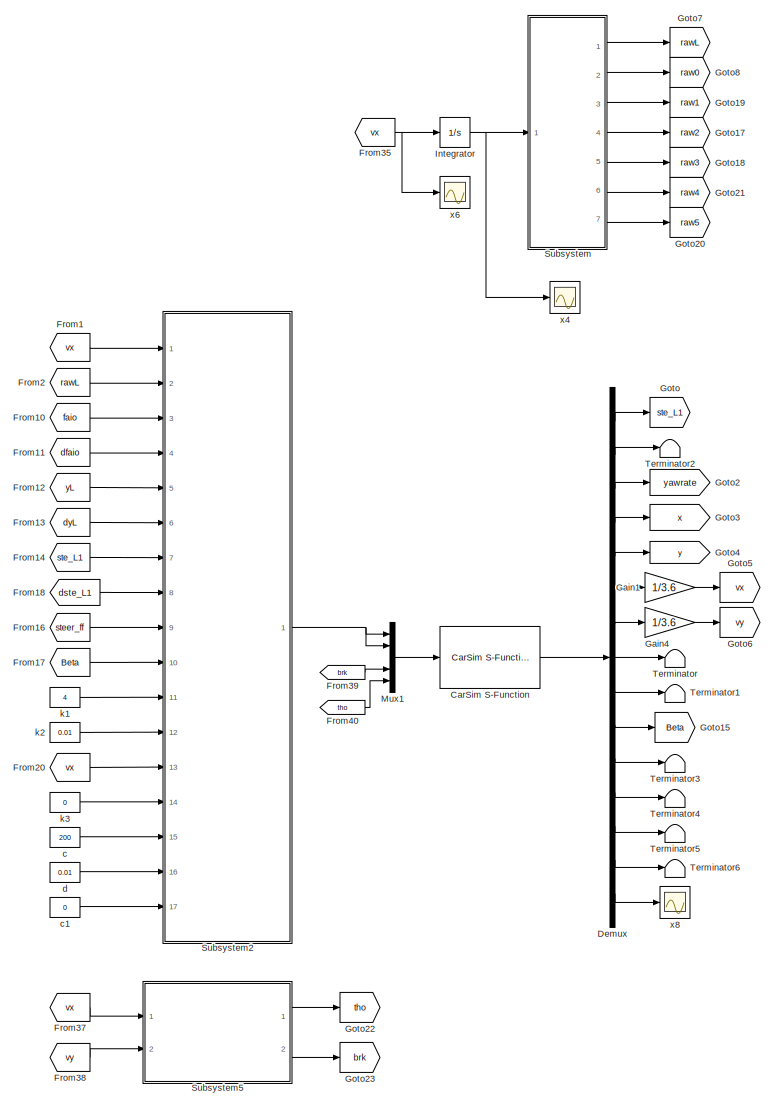
[diagram: root canvas - part 1/2, right side, full height]
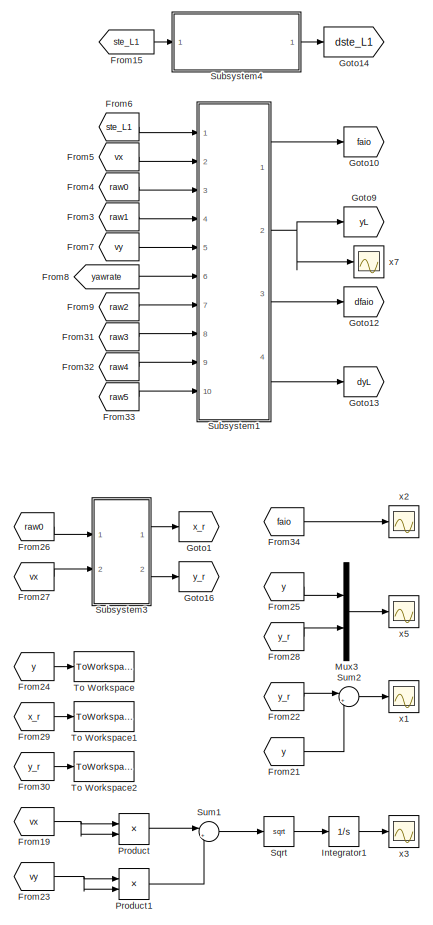
[diagram: root canvas - part 2/2, left side, full height]
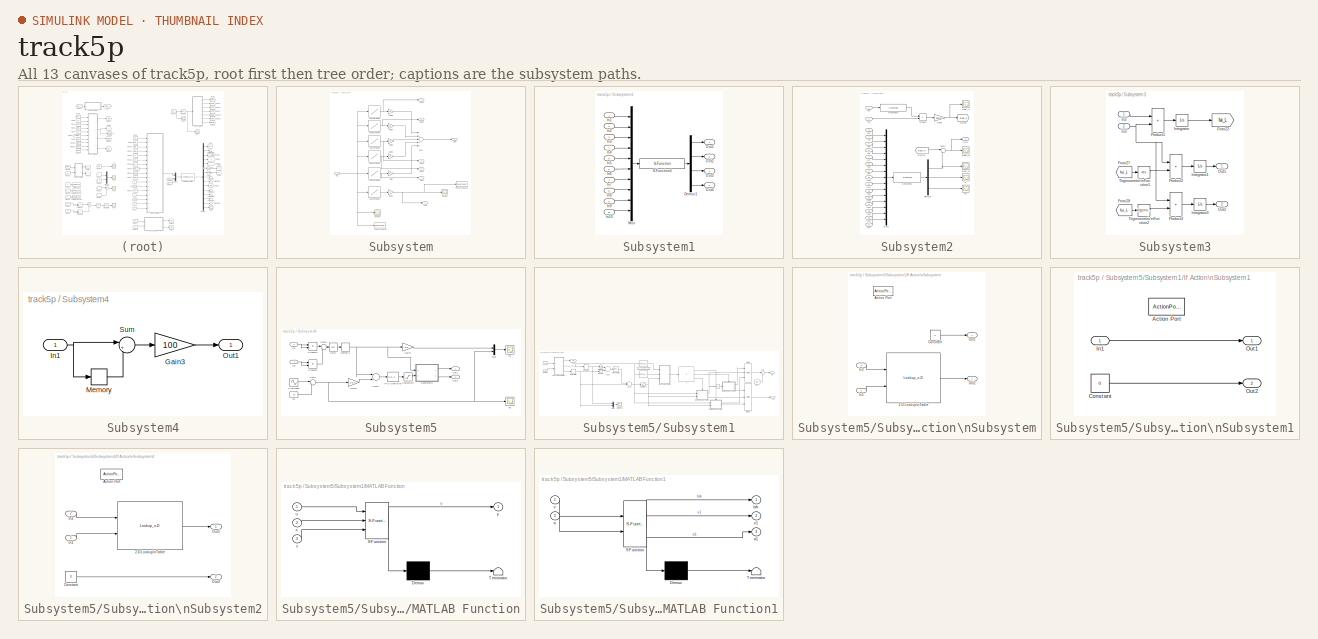
[diagram: thumbnail index - all 13 canvases of the model, root first then tree order]
MODEL track5p
KIND model
BLOCK [Reference] CarSim S-Function  REF=Solver_SF/CarSim S-Function
  AttributesFormatString = Vehicle Code: %<VehicleCode>
  Ports = [1, 1]
  Priority = 1
  SID = 406
  SIMFILE = <userpath><path>
  SourceBlock = Solver_SF/CarSim S-Function
  SourceType = Vehicle math model library
  VehicleCode = i_i
BLOCK [Demux] Demux
  DisplayOption = bar
  Outputs = 15
  Ports = [1, 15]
  SID = 6
BLOCK [From] From1
  GotoTag = vx
  SID = 40
BLOCK [From] From10
  GotoTag = faio
  SID = 64
BLOCK [From] From11
  GotoTag = dfaio
  SID = 65
BLOCK [From] From12
  GotoTag = yL
  SID = 66
BLOCK [From] From13
  GotoTag = dyL
  SID = 67
BLOCK [From] From14
  GotoTag = ste_L1
  SID = 68
BLOCK [From] From15
  GotoTag = ste_L1
  SID = 85
BLOCK [From] From16
  GotoTag = steer_ff
  SID = 70
BLOCK [From] From17
  GotoTag = Beta
  SID = 91
BLOCK [From] From18
  GotoTag = dste_L1
  SID = 89
BLOCK [From] From19
  GotoTag = vx
  SID = 304
BLOCK [From] From2
  GotoTag = rawL
  SID = 42
BLOCK [From] From20
  GotoTag = vx
  SID = 74
BLOCK [From] From21
  GotoTag = y
  SID = 149
BLOCK [From] From22
  GotoTag = y_r
  SID = 150
BLOCK [From] From23
  GotoTag = vy
  SID = 305
BLOCK [From] From24
  GotoTag = y
  SID = 161
BLOCK [From] From25
  GotoTag = y
  SID = 123
BLOCK [From] From26
  GotoTag = raw0
  SID = 143
BLOCK [From] From27
  GotoTag = vx
  SID = 144
BLOCK [From] From28
  GotoTag = y_r
  SID = 147
BLOCK [From] From29
  GotoTag = x_r
  SID = 162
BLOCK [From] From3
  GotoTag = raw1
  SID = 49
BLOCK [From] From30
  GotoTag = y_r
  SID = 164
BLOCK [From] From31
  GotoTag = raw3
  SID = 194
BLOCK [From] From32
  GotoTag = raw4
  SID = 195
BLOCK [From] From33
  GotoTag = raw5
  SID = 196
BLOCK [From] From34
  GotoTag = faio
  SID = 197
BLOCK [From] From35
  GotoTag = vx
  SID = 402
BLOCK [From] From37
  GotoTag = vx
  SID = 320
BLOCK [From] From38
  GotoTag = vy
  SID = 321
BLOCK [From] From39
  GotoTag = brk
  SID = 396
BLOCK [From] From4
  GotoTag = raw0
  SID = 50
BLOCK [From] From40
  GotoTag = tho
  SID = 397
BLOCK [From] From5
  GotoTag = vx
  SID = 51
BLOCK [From] From6
  GotoTag = ste_L1
  SID = 52
BLOCK [From] From7
  GotoTag = vy
  SID = 53
BLOCK [From] From8
  GotoTag = yawrate
  SID = 54
BLOCK [From] From9
  GotoTag = raw2
  SID = 193
BLOCK [Gain] Gain1
  Gain = 1/3.6
  OutDataTypeStr = Inherit: Inherit via internal rule
  ParamDataTypeStr = Inherit: Inherit via internal rule
  SID = 117
  SaturateOnIntegerOverflow = off
BLOCK [Gain] Gain4
  Gain = 1/3.6
  OutDataTypeStr = Inherit: Inherit via internal rule
  ParamDataTypeStr = Inherit: Inherit via internal rule
  SID = 118
  SaturateOnIntegerOverflow = off
BLOCK [Goto] Goto
  GotoTag = ste_L1
  SID = 21
BLOCK [Goto] Goto1
  GotoTag = x_r
  SID = 145
BLOCK [Goto] Goto10
  GotoTag = faio
  SID = 59
BLOCK [Goto] Goto12
  GotoTag = dfaio
  SID = 61
BLOCK [Goto] Goto13
  GotoTag = dyL
  SID = 62
BLOCK [Goto] Goto14
  GotoTag = dste_L1
  SID = 88
BLOCK [Goto] Goto15
  GotoTag = Beta
  SID = 90
BLOCK [Goto] Goto16
  GotoTag = y_r
  SID = 146
BLOCK [Goto] Goto17
  GotoTag = raw2
  SID = 183
BLOCK [Goto] Goto18
  GotoTag = raw3
  SID = 184
BLOCK [Goto] Goto19
  GotoTag = raw1
  SID = 185
BLOCK [Goto] Goto2
  GotoTag = yawrate
  SID = 24
BLOCK [Goto] Goto20
  GotoTag = raw5
  SID = 186
BLOCK [Goto] Goto21
  GotoTag = raw4
  SID = 187
BLOCK [Goto] Goto22
  GotoTag = tho
  SID = 322
BLOCK [Goto] Goto23
  GotoTag = brk
  SID = 323
BLOCK [Goto] Goto3
  GotoTag = x
  SID = 26
BLOCK [Goto] Goto4
  GotoTag = y
  SID = 27
BLOCK [Goto] Goto5
  GotoTag = vx
  SID = 28
BLOCK [Goto] Goto6
  GotoTag = vy
  SID = 29
BLOCK [Goto] Goto7
  GotoTag = rawL
  SID = 38
BLOCK [Goto] Goto8
  GotoTag = raw0
  SID = 39
BLOCK [Goto] Goto9
  GotoTag = yL
  SID = 398
BLOCK [Integrator] Integrator
  Ports = [1, 1]
  SID = 400
BLOCK [Integrator] Integrator1
  Ports = [1, 1]
  SID = 310
BLOCK [Mux] Mux1
  DisplayOption = bar
  Inputs = 5
  Ports = [5, 1]
  SID = 46
BLOCK [Mux] Mux3
  DisplayOption = bar
  Inputs = 2
  Ports = [2, 1]
  SID = 151
BLOCK [Product] Product
  InputSameDT = off
  OutDataTypeStr = Inherit: Inherit via internal rule
  Ports = [2, 1]
  RndMeth = Floor
  SID = 306
  SaturateOnIntegerOverflow = off
BLOCK [Product] Product1
  InputSameDT = off
  OutDataTypeStr = Inherit: Inherit via internal rule
  Ports = [2, 1]
  RndMeth = Floor
  SID = 307
  SaturateOnIntegerOverflow = off
BLOCK [Sqrt] Sqrt
  SID = 309
BLOCK [SubSystem] Subsystem
  Ports = [1, 7]
  RequestExecContextInheritance = off
  SID = 7
  Variant = off
BLOCK [Gain] Subsystem/Gain
  Gain = 0.1
  OutDataTypeStr = Inherit: Inherit via internal rule
  ParamDataTypeStr = Inherit: Inherit via internal rule
  SID = 9
  SaturateOnIntegerOverflow = off
BLOCK [Gain] Subsystem/Gain1
  OutDataTypeStr = Inherit: Inherit via internal rule
  ParamDataTypeStr = Inherit: Inherit via internal rule
  SID = 10
  SaturateOnIntegerOverflow = off
BLOCK [Gain] Subsystem/Gain2
  Gain = 0.1
  OutDataTypeStr = Inherit: Inherit via internal rule
  ParamDataTypeStr = Inherit: Inherit via internal rule
  SID = 172
  SaturateOnIntegerOverflow = off
BLOCK [Gain] Subsystem/Gain3
  Gain = 0.3
  OutDataTypeStr = Inherit: Inherit via internal rule
  ParamDataTypeStr = Inherit: Inherit via internal rule
  SID = 173
  SaturateOnIntegerOverflow = off
BLOCK [Gain] Subsystem/Gain4
  Gain = 0.3
  OutDataTypeStr = Inherit: Inherit via internal rule
  ParamDataTypeStr = Inherit: Inherit via internal rule
  SID = 174
  SaturateOnIntegerOverflow = off
BLOCK [Gain] Subsystem/Gain5
  Gain = 0.2
  OutDataTypeStr = Inherit: Inherit via internal rule
  ParamDataTypeStr = Inherit: Inherit via internal rule
  SID = 175
  SaturateOnIntegerOverflow = off
BLOCK [Inport] Subsystem/In1
  IconDisplay = Port number
  SID = 8
BLOCK [Lookup] Subsystem/Lookup Table1
  InputValues = load('change_lane_s.txt')
  SID = 13
  SaturateOnIntegerOverflow = off
  Table = load('change_lane_p.txt')
BLOCK [Lookup] Subsystem/Lookup Table2
  InputValues = load('change_lane_s.txt')
  SID = 275
  SaturateOnIntegerOverflow = off
  Table = load('change_lane_p05.txt')
BLOCK [Lookup] Subsystem/Lookup Table3
  InputValues = load('change_lane_s.txt')
  SID = 276
  SaturateOnIntegerOverflow = off
  Table = load('change_lane_p04.txt')
BLOCK [Lookup] Subsystem/Lookup Table4
  InputValues = load('change_lane_s.txt')
  SID = 277
  SaturateOnIntegerOverflow = off
  Table = load('change_lane_p03.txt')
BLOCK [Lookup] Subsystem/Lookup Table5
  InputValues = load('change_lane_s.txt')
  SID = 278
  SaturateOnIntegerOverflow = off
  Table = load('change_lane_p02.txt')
BLOCK [Lookup] Subsystem/Lookup Table6
  InputValues = load('change_lane_s.txt')
  SID = 279
  SaturateOnIntegerOverflow = off
  Table = load('change_lane_p01.txt')
BLOCK [Scope] Subsystem/Scope
  NumInputPorts = 1
  Ports = [1]
  SID = 280
  ScopeSpecificationString = Simulink.scopes.TimeScopeBlockCfg('CurrentConfiguration', extmgr.ConfigurationSet(extmgr.Configuration('Core','General UI',true),extmgr.Configuration('Core','Source UI',true),extmgr.Configuration('Sources','WiredSimulink',true,'DataLoggingVariableName','ScopeData1'),extmgr.Configuration('Visuals','Time Domain',true,'SerializedDisplays',{struct('MinYLimReal','-0.01187','MaxYLimReal','0.01187','YLab...<+1364ch>
BLOCK [Scope] Subsystem/Scope1
  NumInputPorts = 1
  Ports = [1]
  SID = 281
  ScopeSpecificationString = Simulink.scopes.TimeScopeBlockCfg('CurrentConfiguration', extmgr.ConfigurationSet(extmgr.Configuration('Core','General UI',true),extmgr.Configuration('Core','Source UI',true),extmgr.Configuration('Sources','WiredSimulink',true,'DataLoggingVariableName','ScopeData2'),extmgr.Configuration('Visuals','Time Domain',true,'SerializedDisplays',{struct('MinYLimReal','-16.34884','MaxYLimReal','147.13958','Y...<+1404ch>
BLOCK [Sum] Subsystem/Sum
  InputSameDT = off
  Inputs = |+++++
  OutDataTypeStr = Inherit: Inherit via internal rule
  Ports = [5, 1]
  SID = 176
  SaturateOnIntegerOverflow = off
BLOCK [ToWorkspace] Subsystem/To Workspace1
  FixptAsFi = on
  MaxDataPoints = inf
  Ports = [1]
  SID = 287
  SampleTime = -1
  Save2DSignal = 3-D array (concatenate along third dimension)
  SaveFormat = Timeseries
  VariableName = k
BLOCK [ToWorkspace] Subsystem/To Workspace2
  FixptAsFi = on
  MaxDataPoints = inf
  Ports = [1]
  SID = 289
  SampleTime = -1
  Save2DSignal = 3-D array (concatenate along third dimension)
  SaveFormat = Timeseries
  VariableName = L
BLOCK [Outport] Subsystem/raw0
  IconDisplay = Port number
  Port = 2
  SID = 20
BLOCK [Outport] Subsystem/rawL
  IconDisplay = Port number
  SID = 19
BLOCK [Outport] Subsystem/rawL1
  IconDisplay = Port number
  Port = 3
  SID = 188
BLOCK [Outport] Subsystem/rawL2
  IconDisplay = Port number
  Port = 4
  SID = 189
BLOCK [Outport] Subsystem/rawL3
  IconDisplay = Port number
  Port = 5
  SID = 190
BLOCK [Outport] Subsystem/rawL4
  IconDisplay = Port number
  Port = 6
  SID = 191
BLOCK [Outport] Subsystem/rawL5
  IconDisplay = Port number
  Port = 7
  SID = 192
BLOCK [SubSystem] Subsystem1
  Ports = [10, 4]
  RequestExecContextInheritance = off
  SID = 238
  Variant = off
BLOCK [Demux] Subsystem1/Demux1
  DisplayOption = bar
  Ports = [1, 4]
  SID = 58
BLOCK [Inport] Subsystem1/In1
  IconDisplay = Port number
  SID = 239
BLOCK [Inport] Subsystem1/In10
  IconDisplay = Port number
  Port = 10
  SID = 248
BLOCK [Inport] Subsystem1/In2
  IconDisplay = Port number
  Port = 2
  SID = 240
BLOCK [Inport] Subsystem1/In3
  IconDisplay = Port number
  Port = 3
  SID = 241
BLOCK [Inport] Subsystem1/In4
  IconDisplay = Port number
  Port = 4
  SID = 242
BLOCK [Inport] Subsystem1/In5
  IconDisplay = Port number
  Port = 5
  SID = 243
BLOCK [Inport] Subsystem1/In6
  IconDisplay = Port number
  Port = 6
  SID = 244
BLOCK [Inport] Subsystem1/In7
  IconDisplay = Port number
  Port = 7
  SID = 245
BLOCK [Inport] Subsystem1/In8
  IconDisplay = Port number
  Port = 8
  SID = 246
BLOCK [Inport] Subsystem1/In9
  IconDisplay = Port number
  Port = 9
  SID = 247
BLOCK [Mux] Subsystem1/Mux
  DisplayOption = bar
  Inputs = 10
  Ports = [10, 1]
  SID = 45
BLOCK [Outport] Subsystem1/Out1
  IconDisplay = Port number
  SID = 249
BLOCK [Outport] Subsystem1/Out2
  IconDisplay = Port number
  Port = 2
  SID = 250
BLOCK [Outport] Subsystem1/Out3
  IconDisplay = Port number
  Port = 3
  SID = 251
BLOCK [Outport] Subsystem1/Out4
  IconDisplay = Port number
  Port = 4
  SID = 252
BLOCK [S-Function] Subsystem1/S-Function4
  EnableBusSupport = off
  FunctionName = vehicle_model_multipoint
  Ports = [1, 1]
  SFcnIsStateOwnerBlock = off
  SFunctionDeploymentMode = off
  SID = 177
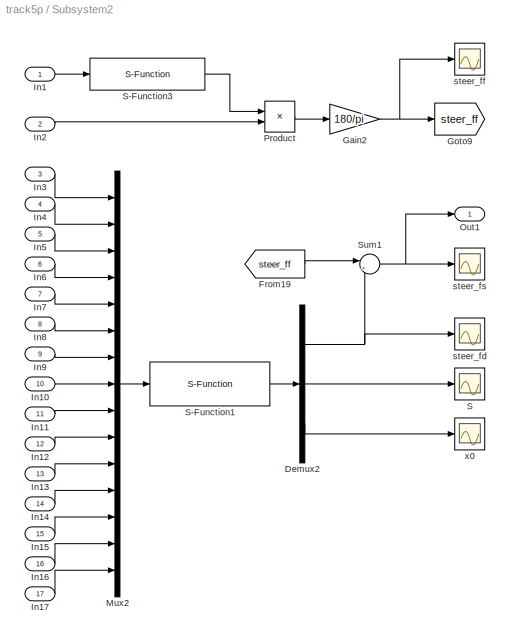
BLOCK [SubSystem] Subsystem2
  Ports = [17, 1]
  RequestExecContextInheritance = off
  SID = 253
  Variant = off
BLOCK [Demux] Subsystem2/Demux2
  DisplayOption = bar
  Outputs = 3
  Ports = [1, 3]
  SID = 94
BLOCK [From] Subsystem2/From19
  GotoTag = steer_ff
  SID = 95
BLOCK [Gain] Subsystem2/Gain2
  Gain = 180/pi
  OutDataTypeStr = Inherit: Inherit via internal rule
  ParamDataTypeStr = Inherit: Inherit via internal rule
  SID = 93
  SaturateOnIntegerOverflow = off
BLOCK [Goto] Subsystem2/Goto9
  GotoTag = steer_ff
  SID = 43
BLOCK [Inport] Subsystem2/In1
  IconDisplay = Port number
  SID = 254
BLOCK [Inport] Subsystem2/In10
  IconDisplay = Port number
  Port = 10
  SID = 263
BLOCK [Inport] Subsystem2/In11
  IconDisplay = Port number
  Port = 11
  SID = 264
BLOCK [Inport] Subsystem2/In12
  IconDisplay = Port number
  Port = 12
  SID = 265
BLOCK [Inport] Subsystem2/In13
  IconDisplay = Port number
  Port = 13
  SID = 266
BLOCK [Inport] Subsystem2/In14
  IconDisplay = Port number
  Port = 14
  SID = 267
BLOCK [Inport] Subsystem2/In15
  IconDisplay = Port number
  Port = 15
  SID = 268
BLOCK [Inport] Subsystem2/In16
  IconDisplay = Port number
  Port = 16
  SID = 269
BLOCK [Inport] Subsystem2/In17
  IconDisplay = Port number
  Port = 17
  SID = 270
BLOCK [Inport] Subsystem2/In2
  IconDisplay = Port number
  Port = 2
  SID = 255
BLOCK [Inport] Subsystem2/In3
  IconDisplay = Port number
  Port = 3
  SID = 256
BLOCK [Inport] Subsystem2/In4
  IconDisplay = Port number
  Port = 4
  SID = 257
BLOCK [Inport] Subsystem2/In5
  IconDisplay = Port number
  Port = 5
  SID = 258
BLOCK [Inport] Subsystem2/In6
  IconDisplay = Port number
  Port = 6
  SID = 259
BLOCK [Inport] Subsystem2/In7
  IconDisplay = Port number
  Port = 7
  SID = 260
BLOCK [Inport] Subsystem2/In8
  IconDisplay = Port number
  Port = 8
  SID = 261
BLOCK [Inport] Subsystem2/In9
  IconDisplay = Port number
  Port = 9
  SID = 262
BLOCK [Mux] Subsystem2/Mux2
  DisplayOption = bar
  Inputs = 15
  Ports = [15, 1]
  SID = 63
BLOCK [Outport] Subsystem2/Out1
  IconDisplay = Port number
  SID = 271
BLOCK [Product] Subsystem2/Product
  InputSameDT = off
  OutDataTypeStr = Inherit: Inherit via internal rule
  Ports = [2, 1]
  RndMeth = Floor
  SID = 41
  SaturateOnIntegerOverflow = off
BLOCK [Scope] Subsystem2/S
  NumInputPorts = 1
  Ports = [1]
  SID = 99
  ScopeSpecificationString = Simulink.scopes.TimeScopeBlockCfg('CurrentConfiguration', extmgr.ConfigurationSet(extmgr.Configuration('Core','General UI',true),extmgr.Configuration('Core','Source UI',true),extmgr.Configuration('Sources','WiredSimulink',true,'DataLoggingVariableName','ScopeData1'),extmgr.Configuration('Visuals','Time Domain',true,'SerializedDisplays',{struct('MinYLimReal','-18.34695','MaxYLimReal','17.61791','YL...<+1373ch>
BLOCK [S-Function] Subsystem2/S-Function1
  EnableBusSupport = off
  FunctionName = steer_slid_mode_c
  Ports = [1, 1]
  SFcnIsStateOwnerBlock = off
  SFunctionDeploymentMode = off
  SID = 48
BLOCK [S-Function] Subsystem2/S-Function3
  EnableBusSupport = off
  FunctionName = ff_control
  Ports = [1, 1]
  SFcnIsStateOwnerBlock = off
  SFunctionDeploymentMode = off
  SID = 47
BLOCK [Sum] Subsystem2/Sum1
  IconShape = round
  InputSameDT = off
  Inputs = |++
  OutDataTypeStr = Inherit: Inherit via internal rule
  Ports = [2, 1]
  SID = 96
  SaturateOnIntegerOverflow = off
BLOCK [Scope] Subsystem2/steer_fd
  NumInputPorts = 1
  Ports = [1]
  SID = 101
  ScopeSpecificationString = Simulink.scopes.TimeScopeBlockCfg('CurrentConfiguration', extmgr.ConfigurationSet(extmgr.Configuration('Core','General UI',true),extmgr.Configuration('Core','Source UI',true),extmgr.Configuration('Sources','WiredSimulink',true,'DataLoggingVariableName','ScopeData3'),extmgr.Configuration('Visuals','Time Domain',true,'SerializedDisplays',{struct('MinYLimReal','-1.24816','MaxYLimReal','1.50015','YLab...<+1367ch>
BLOCK [Scope] Subsystem2/steer_ff
  NumInputPorts = 1
  Ports = [1]
  SID = 114
  ScopeSpecificationString = Simulink.scopes.TimeScopeBlockCfg('CurrentConfiguration', extmgr.ConfigurationSet(extmgr.Configuration('Core','General UI',true),extmgr.Configuration('Core','Source UI',true),extmgr.Configuration('Sources','WiredSimulink',true,'DataLoggingVariableName','ScopeData7'),extmgr.Configuration('Visuals','Time Domain',true,'SerializedDisplays',{struct('MinYLimReal','-1.83761','MaxYLimReal','1.83227','YLab...<+1397ch>
BLOCK [Scope] Subsystem2/steer_fs
  NumInputPorts = 1
  Ports = [1]
  SID = 102
  ScopeSpecificationString = Simulink.scopes.TimeScopeBlockCfg('CurrentConfiguration', extmgr.ConfigurationSet(extmgr.Configuration('Core','General UI',true),extmgr.Configuration('Core','Source UI',true),extmgr.Configuration('Sources','WiredSimulink',true,'DataLoggingVariableName','ScopeData4'),extmgr.Configuration('Visuals','Time Domain',true,'SerializedDisplays',{struct('MinYLimReal','-1.60814','MaxYLimReal','1.65796','YLab...<+1396ch>
BLOCK [Scope] Subsystem2/x0
  NumInputPorts = 1
  Ports = [1]
  SID = 100
  ScopeSpecificationString = Simulink.scopes.TimeScopeBlockCfg('CurrentConfiguration', extmgr.ConfigurationSet(extmgr.Configuration('Core','General UI',true),extmgr.Configuration('Core','Source UI',true),extmgr.Configuration('Sources','WiredSimulink',true,'DataLoggingVariableName','ScopeData2'),extmgr.Configuration('Visuals','Time Domain',true,'SerializedDisplays',{struct('MinYLimReal','-1.00000','MaxYLimReal','1.00000','YLab...<+1367ch>
BLOCK [SubSystem] Subsystem3
  Ports = [2, 2]
  RequestExecContextInheritance = off
  SID = 125
  Variant = off
BLOCK [From] Subsystem3/From27
  GotoTag = fai_L
  SID = 130
BLOCK [From] Subsystem3/From28
  GotoTag = fai_L
  SID = 131
BLOCK [Goto] Subsystem3/Goto22
  GotoTag = fai_L
  SID = 132
BLOCK [Inport] Subsystem3/In2
  IconDisplay = Port number
  SID = 127
BLOCK [Inport] Subsystem3/In3
  IconDisplay = Port number
  Port = 2
  SID = 128
BLOCK [Integrator] Subsystem3/Integrator
  Ports = [1, 1]
  SID = 133
BLOCK [Integrator] Subsystem3/Integrator1
  Ports = [1, 1]
  SID = 134
BLOCK [Integrator] Subsystem3/Integrator3
  Ports = [1, 1]
  SID = 135
BLOCK [Outport] Subsystem3/Out1
  IconDisplay = Port number
  SID = 141
BLOCK [Outport] Subsystem3/Out2
  IconDisplay = Port number
  Port = 2
  SID = 142
BLOCK [Product] Subsystem3/Product1
  InputSameDT = off
  OutDataTypeStr = Inherit: Inherit via internal rule
  Ports = [2, 1]
  SID = 136
  SaturateOnIntegerOverflow = off
BLOCK [Product] Subsystem3/Product2
  InputSameDT = off
  OutDataTypeStr = Inherit: Inherit via internal rule
  Ports = [2, 1]
  SID = 137
  SaturateOnIntegerOverflow = off
BLOCK [Product] Subsystem3/Product3
  InputSameDT = off
  OutDataTypeStr = Inherit: Inherit via internal rule
  Ports = [2, 1]
  SID = 138
  SaturateOnIntegerOverflow = off
BLOCK [Trigonometry] Subsystem3/Trigonometric\nFunction1
  Operator = cos
  Ports = [1, 1]
  SID = 139
BLOCK [Trigonometry] Subsystem3/Trigonometric\nFunction2
  Ports = [1, 1]
  SID = 140
BLOCK [SubSystem] Subsystem4
  Ports = [1, 1]
  RequestExecContextInheritance = off
  SID = 272
  Variant = off
BLOCK [Gain] Subsystem4/Gain3
  Gain = 100
  OutDataTypeStr = Inherit: Inherit via internal rule
  ParamDataTypeStr = Inherit: Inherit via internal rule
  SID = 115
  SaturateOnIntegerOverflow = off
BLOCK [Inport] Subsystem4/In1
  IconDisplay = Port number
  SID = 273
BLOCK [Memory] Subsystem4/Memory
  SID = 86
BLOCK [Outport] Subsystem4/Out1
  IconDisplay = Port number
  SID = 274
BLOCK [Sum] Subsystem4/Sum
  IconShape = round
  InputSameDT = off
  Inputs = |+-
  OutDataTypeStr = Inherit: Inherit via internal rule
  Ports = [2, 1]
  SID = 87
  SaturateOnIntegerOverflow = off
BLOCK [SubSystem] Subsystem5
  Ports = [2, 2]
  RequestExecContextInheritance = off
  SID = 324
  Variant = off
BLOCK [Gain] Subsystem5/Gain1
  Gain = 3.6
  OutDataTypeStr = Inherit: Inherit via internal rule
  ParamDataTypeStr = Inherit: Inherit via internal rule
  SID = 327
  SaturateOnIntegerOverflow = off
BLOCK [Gain] Subsystem5/Gain2
  Gain = 1/3.6
  OutDataTypeStr = Inherit: Inherit via internal rule
  ParamDataTypeStr = Inherit: Inherit via internal rule
  SID = 328
  SaturateOnIntegerOverflow = off
BLOCK [Inport] Subsystem5/In1
  IconDisplay = Port number
  SID = 325
BLOCK [Inport] Subsystem5/In2
  IconDisplay = Port number
  Port = 2
  SID = 326
BLOCK [Memory] Subsystem5/Memory1
  SID = 329
BLOCK [Mux] Subsystem5/Mux
  DisplayOption = bar
  Inputs = 2
  Ports = [2, 1]
  SID = 330
BLOCK [Outport] Subsystem5/Out1
  IconDisplay = Port number
  SID = 391
BLOCK [Outport] Subsystem5/Out2
  IconDisplay = Port number
  Port = 2
  SID = 392
BLOCK [Reference] Subsystem5/PID Controller  REF=simulink/Continuous/PID Controller
  AntiWindupMode = none
  Controller = PID
  ControllerParametersSource = internal
  D = 0.05
  DGainOutDataTypeStr = Inherit: Inherit via internal rule
  DOutDataTypeStr = Inherit: Inherit via internal rule
  DOutMax = []
  DOutMin = []
  DParamDataTypeStr = Inherit: Inherit via internal rule
  DParamMax = []
  DParamMin = []
  DProdOutDataTypeStr = Inherit: Inherit via internal rule
  DifferentiatorICPrevScaledInput = 0
  DifferentiatorOutDataTypeStr = Inherit: Inherit via internal rule
  DifferentiatorOutMax = []
  DifferentiatorOutMin = []
  DivideOutDataTypeStr = Inherit: Inherit via internal rule
  DivideOutMax = []
  DivideOutMin = []
  ExternalReset = none
  FilterContinuousStateAttributes = ''
  FilterDiffDenAccumDataTypeStr = Inherit: Inherit via internal rule
  FilterDiffDenProductOutputDataTypeStr = Inherit: Inherit via internal rule
  FilterDiffNumAccumDataTypeStr = Inherit: Inherit via internal rule
  FilterDiffNumProductOutputDataTypeStr = Inherit: Inherit via internal rule
  FilterDiffOutCoefDataTypeStr = Inherit: Inherit via internal rule
  FilterDiffOutCoefMax = []
  FilterDiffOutCoefMin = []
  FilterMethod = Forward Euler
  FilterOutDataTypeStr = Inherit: Inherit via internal rule
  FilterOutMax = []
  FilterOutMin = []
  FilterRTWStateStorageClass = Auto
  FilterStateMustResolveToSignalObject = off
  Form = Parallel
  I = 1
  IGainOutDataTypeStr = Inherit: Inherit via internal rule
  IOutDataTypeStr = Inherit: Inherit via internal rule
  IOutMax = []
  IOutMin = []
  IParamDataTypeStr = Inherit: Inherit via internal rule
  IParamMax = []
  IParamMin = []
  IProdOutDataTypeStr = Inherit: Inherit via internal rule
  IgnoreLimit = off
  InitialConditionForFilter = 0
  InitialConditionForIntegrator = 0
  InitialConditionSetting = State (most efficient)
  InitialConditionSource = internal
  IntegratorContinuousStateAttributes = ''
  IntegratorMethod = Forward Euler
  IntegratorOutDataTypeStr = Inherit: Inherit via internal rule
  IntegratorOutMax = []
  IntegratorOutMin = []
  IntegratorRTWStateStorageClass = Auto
  IntegratorStateMustResolveToSignalObject = off
  Kb = 1
  KbOutDataTypeStr = Inherit: Inherit via internal rule
  KbOutMax = []
  KbOutMin = []
  KbParamDataTypeStr = Inherit: Inherit via internal rule
  KbParamMax = []
  KbParamMin = []
  Kt = 1
  KtOutDataTypeStr = Inherit: Inherit via internal rule
  KtOutMax = []
  KtOutMin = []
  KtParamDataTypeStr = Inherit: Inherit via internal rule
  KtParamMax = []
  KtParamMin = []
  LimitOutput = off
  LinearizeAsGain = on
  LockScale = off
  LowerSaturationLimit = -inf
  N = 100
  NGainOutDataTypeStr = Inherit: Inherit via internal rule
  NOutDataTypeStr = Inherit: Inherit via internal rule
  NOutMax = []
  NOutMin = []
  NParamDataTypeStr = Inherit: Inherit via internal rule
  NParamMax = []
  NParamMin = []
  NProdOutDataTypeStr = Inherit: Inherit via internal rule
  P = 8
  PGainOutDataTypeStr = Inherit: Inherit via internal rule
  POutDataTypeStr = Inherit: Inherit via internal rule
  POutMax = []
  POutMin = []
  PParamDataTypeStr = Inherit: Inherit via internal rule
  PParamMax = []
  PParamMin = []
  PProdOutDataTypeStr = Inherit: Inherit via internal rule
  Ports = [1, 1]
  ReciprocalOutDataTypeStr = Inherit: Inherit via internal rule
  ReciprocalOutMax = []
  ReciprocalOutMin = []
  RndMeth = Floor
  SID = 331
  SampleTime = -1
  SaturateOnIntegerOverflow = off
  SaturationOutDataTypeStr = Inherit: Same as input
  SaturationOutMax = []
  SaturationOutMin = []
  SourceBlock = simulink/Continuous/PID Controller
  SourceProductBaseCode = SL
  SourceProductName = Simulink
  SourceType = PID 1dof
  SumAccumDataTypeStr = Inherit: Inherit via internal rule
  SumDAccumDataTypeStr = Inherit: Inherit via internal rule
  SumDOutDataTypeStr = Inherit: Inherit via internal rule
  SumDOutMax = []
  SumDOutMin = []
  SumDenAccumDataTypeStr = Inherit: Inherit via internal rule
  SumDenOutDataTypeStr = Inherit: Inherit via internal rule
  SumDenOutMax = []
  SumDenOutMin = []
  SumI1AccumDataTypeStr = Inherit: Inherit via internal rule
  SumI1OutDataTypeStr = Inherit: Inherit via internal rule
  SumI1OutMax = []
  SumI1OutMin = []
  SumI2AccumDataTypeStr = Inherit: Inherit via internal rule
  SumI2OutDataTypeStr = Inherit: Inherit via internal rule
  SumI2OutMax = []
  SumI2OutMin = []
  SumI3AccumDataTypeStr = Inherit: Inherit via internal rule
  SumI3OutDataTypeStr = Inherit: Inherit via internal rule
  SumI3OutMax = []
  SumI3OutMin = []
  SumNumAccumDataTypeStr = Inherit: Inherit via internal rule
  SumNumOutDataTypeStr = Inherit: Inherit via internal rule
  SumNumOutMax = []
  SumNumOutMin = []
  SumOutDataTypeStr = Inherit: Inherit via internal rule
  SumOutMax = []
  SumOutMin = []
  TimeDomain = Continuous-time
  TrackingMode = off
  TunerSelectOption = Transfer Function Based (PID Tuner App)
  UpperSaturationLimit = inf
  UseFilter = on
  ZeroCross = on
BLOCK [Product] Subsystem5/Product3
  InputSameDT = off
  OutDataTypeStr = Inherit: Inherit via internal rule
  Ports = [2, 1]
  RndMeth = Floor
  SID = 332
  SaturateOnIntegerOverflow = off
BLOCK [Product] Subsystem5/Product4
  InputSameDT = off
  OutDataTypeStr = Inherit: Inherit via internal rule
  Ports = [2, 1]
  RndMeth = Floor
  SID = 333
  SaturateOnIntegerOverflow = off
BLOCK [Saturate] Subsystem5/Saturation
  InputPortMap = u0
  LowerLimit = -3
  Ports = [1, 1]
  SID = 334
  UpperLimit = 3
BLOCK [Sin] Subsystem5/Sine Wave
  Amplitude = 5
  Frequency = 0.1
  Ports = [0, 1]
  SID = 335
  SampleTime = 0
BLOCK [Sqrt] Subsystem5/Sqrt1
  SID = 336
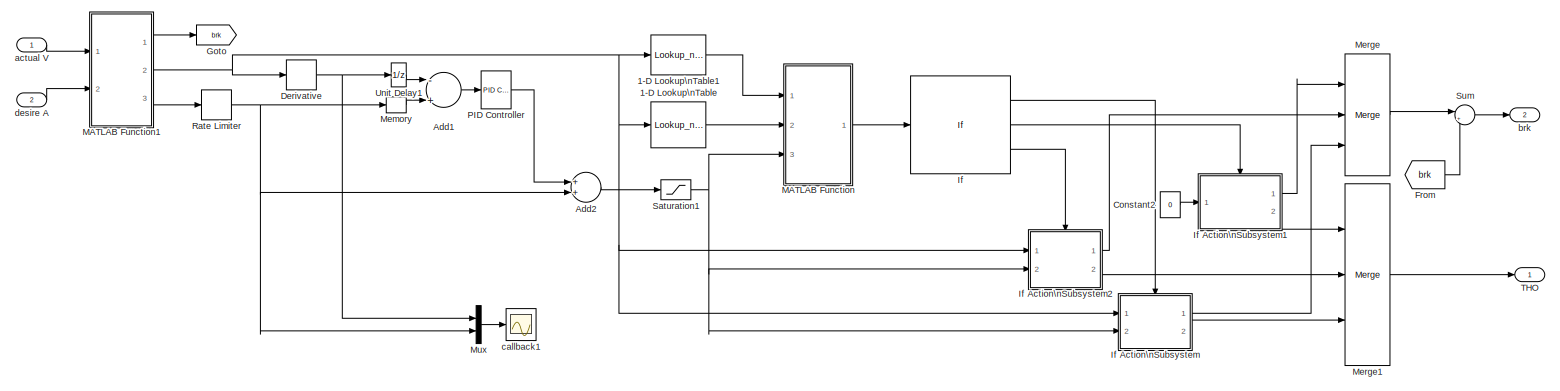
[diagram: Subsystem5/Subsystem1 - part 1/1, most of the canvas]
BLOCK [SubSystem] Subsystem5/Subsystem1
  Ports = [2, 2]
  RequestExecContextInheritance = off
  SID = 337
  Variant = off
BLOCK [Lookup_n-D] Subsystem5/Subsystem1/1-D Lookup\nTable
  BreakpointsForDimension1 = xlsread('tho0brk0','sheet4','A2:A16')
  InternalRulePriority = Speed
  NumberOfTableDimensions = 1
  Ports = [1, 1]
  RndMeth = Simplest
  SID = 340
  Table = xlsread('tho0brk0','sheet4','B2:B16')
BLOCK [Lookup_n-D] Subsystem5/Subsystem1/1-D Lookup\nTable1
  BreakpointsForDimension1 = xlsread('tho0brk0','sheet3','A2:A29')
  InternalRulePriority = Speed
  NumberOfTableDimensions = 1
  Ports = [1, 1]
  RndMeth = Simplest
  SID = 341
  Table = xlsread('tho0brk0','sheet3','B2:B29')
BLOCK [Sum] Subsystem5/Subsystem1/Add1
  InputSameDT = off
  Inputs = -+
  OutDataTypeStr = Inherit: Inherit via internal rule
  Ports = [2, 1]
  SID = 342
  SaturateOnIntegerOverflow = off
BLOCK [Sum] Subsystem5/Subsystem1/Add2
  InputSameDT = off
  OutDataTypeStr = Inherit: Inherit via internal rule
  Ports = [2, 1]
  SID = 343
  SaturateOnIntegerOverflow = off
BLOCK [Constant] Subsystem5/Subsystem1/Constant2
  SID = 344
  Value = 0
BLOCK [Derivative] Subsystem5/Subsystem1/Derivative
  SID = 345
BLOCK [From] Subsystem5/Subsystem1/From
  GotoTag = brk
  SID = 346
BLOCK [Goto] Subsystem5/Subsystem1/Goto
  GotoTag = brk
  SID = 347
BLOCK [If] Subsystem5/Subsystem1/If
  ElseIfExpressions = u1 ==0
  Ports = [1, 3]
  SID = 348
BLOCK [SubSystem] Subsystem5/Subsystem1/If Action\nSubsystem
  Ports = [2, 2, 0, 0, 0, 0, 0, 1]
  RequestExecContextInheritance = off
  SID = 349
  TreatAsAtomicUnit = on
  Variant = off
BLOCK [Lookup_n-D] Subsystem5/Subsystem1/If Action\nSubsystem/2-D Lookup\nTable
  BreakpointsForDimension1 = xlsread('tho-v-a','sheet4','A3:A38')
  BreakpointsForDimension2 = xlsread('tho-v-a','sheet4','B2:P2')
  InternalRulePriority = Speed
  Ports = [2, 1]
  RndMeth = Simplest
  SID = 353
  Table = xlsread('tho-v-a','sheet4','B3:P38')
BLOCK [ActionPort] Subsystem5/Subsystem1/If Action\nSubsystem/Action Port
  ActionType = then
  SID = 352
BLOCK [Constant] Subsystem5/Subsystem1/If Action\nSubsystem/Constant
  SID = 354
  Value = 0
BLOCK [Inport] Subsystem5/Subsystem1/If Action\nSubsystem/In1
  IconDisplay = Port number
  SID = 350
BLOCK [Inport] Subsystem5/Subsystem1/If Action\nSubsystem/In2
  IconDisplay = Port number
  Port = 2
  SID = 351
BLOCK [Outport] Subsystem5/Subsystem1/If Action\nSubsystem/Out1
  IconDisplay = Port number
  SID = 355
BLOCK [Outport] Subsystem5/Subsystem1/If Action\nSubsystem/Out2
  IconDisplay = Port number
  Port = 2
  SID = 356
BLOCK [SubSystem] Subsystem5/Subsystem1/If Action\nSubsystem1
  Ports = [1, 2, 0, 0, 0, 0, 0, 1]
  RequestExecContextInheritance = off
  SID = 357
  TreatAsAtomicUnit = on
  Variant = off
BLOCK [ActionPort] Subsystem5/Subsystem1/If Action\nSubsystem1/Action Port
  ActionType = elseif
  SID = 359
BLOCK [Constant] Subsystem5/Subsystem1/If Action\nSubsystem1/Constant
  SID = 360
  Value = 0
BLOCK [Inport] Subsystem5/Subsystem1/If Action\nSubsystem1/In1
  IconDisplay = Port number
  SID = 358
BLOCK [Outport] Subsystem5/Subsystem1/If Action\nSubsystem1/Out1
  IconDisplay = Port number
  SID = 361
BLOCK [Outport] Subsystem5/Subsystem1/If Action\nSubsystem1/Out2
  IconDisplay = Port number
  Port = 2
  SID = 362
BLOCK [SubSystem] Subsystem5/Subsystem1/If Action\nSubsystem2
  Ports = [2, 2, 0, 0, 0, 0, 0, 1]
  RequestExecContextInheritance = off
  SID = 363
  TreatAsAtomicUnit = on
  Variant = off
BLOCK [Lookup_n-D] Subsystem5/Subsystem1/If Action\nSubsystem2/2-D Lookup\nTable
  BreakpointsForDimension1 = xlsread('brk-v-a','sheet3','A3:A28')
  BreakpointsForDimension2 = xlsread('brk-v-a','sheet3','B2:P2')
  InternalRulePriority = Speed
  Ports = [2, 1]
  RndMeth = Simplest
  SID = 367
  Table = xlsread('brk-v-a','sheet3','B3:P28')
BLOCK [ActionPort] Subsystem5/Subsystem1/If Action\nSubsystem2/Action Port
  ActionType = else
  SID = 366
BLOCK [Constant] Subsystem5/Subsystem1/If Action\nSubsystem2/Constant
  SID = 368
  Value = 0
BLOCK [Inport] Subsystem5/Subsystem1/If Action\nSubsystem2/In1
  IconDisplay = Port number
  SID = 364
BLOCK [Inport] Subsystem5/Subsystem1/If Action\nSubsystem2/In2
  IconDisplay = Port number
  Port = 2
  SID = 365
BLOCK [Outport] Subsystem5/Subsystem1/If Action\nSubsystem2/Out1
  IconDisplay = Port number
  SID = 369
BLOCK [Outport] Subsystem5/Subsystem1/If Action\nSubsystem2/Out2
  IconDisplay = Port number
  Port = 2
  SID = 370
BLOCK [SubSystem] Subsystem5/Subsystem1/MATLAB Function
  ErrorFcn = Stateflow.Translate.translate
  PermitHierarchicalResolution = ExplicitOnly
  Ports = [3, 1]
  RequestExecContextInheritance = off
  SFBlockType = MATLAB Function
  SID = 371
  TreatAsAtomicUnit = on
  Variant = off
BLOCK [Demux] Subsystem5/Subsystem1/MATLAB Function/ Demux 
  Outputs = 1
  Ports = [1, 1]
  SID = 371::20
BLOCK [S-Function] Subsystem5/Subsystem1/MATLAB Function/ SFunction 
  EnableBusSupport = on
  FunctionName = sf_sfun
  PortCounts = [3 2]
  Ports = [3, 2]
  SFcnIsStateOwnerBlock = off
  SFunctionDeploymentMode = off
  SID = 371::19
  Tag = Stateflow S-Function track5p 3
BLOCK [Terminator] Subsystem5/Subsystem1/MATLAB Function/ Terminator 
  SID = 371::21
BLOCK [Inport] Subsystem5/Subsystem1/MATLAB Function/u
  IconDisplay = Port number
  SID = 371::1
BLOCK [Inport] Subsystem5/Subsystem1/MATLAB Function/x
  IconDisplay = Port number
  Port = 2
  SID = 371::22
BLOCK [Outport] Subsystem5/Subsystem1/MATLAB Function/y
  IconDisplay = Port number
  SID = 371::5
BLOCK [Inport] Subsystem5/Subsystem1/MATLAB Function/z
  IconDisplay = Port number
  Port = 3
  SID = 371::25
BLOCK [SubSystem] Subsystem5/Subsystem1/MATLAB Function1
  ErrorFcn = Stateflow.Translate.translate
  PermitHierarchicalResolution = ExplicitOnly
  Ports = [2, 3]
  RequestExecContextInheritance = off
  SFBlockType = MATLAB Function
  SID = 372
  TreatAsAtomicUnit = on
  Variant = off
BLOCK [Demux] Subsystem5/Subsystem1/MATLAB Function1/ Demux 
  Outputs = 1
  Ports = [1, 1]
  SID = 372::20
BLOCK [S-Function] Subsystem5/Subsystem1/MATLAB Function1/ SFunction 
  EnableBusSupport = on
  FunctionName = sf_sfun
  PortCounts = [2 4]
  Ports = [2, 4]
  SFcnIsStateOwnerBlock = off
  SFunctionDeploymentMode = off
  SID = 372::19
  Tag = Stateflow S-Function track5p 12
BLOCK [Terminator] Subsystem5/Subsystem1/MATLAB Function1/ Terminator 
  SID = 372::21
BLOCK [Inport] Subsystem5/Subsystem1/MATLAB Function1/a
  IconDisplay = Port number
  Port = 2
  SID = 372::28
BLOCK [Outport] Subsystem5/Subsystem1/MATLAB Function1/a1
  IconDisplay = Port number
  Port = 3
  SID = 372::27
BLOCK [Outport] Subsystem5/Subsystem1/MATLAB Function1/brk
  IconDisplay = Port number
  SID = 372::25
BLOCK [Inport] Subsystem5/Subsystem1/MATLAB Function1/v
  IconDisplay = Port number
  SID = 372::1
BLOCK [Outport] Subsystem5/Subsystem1/MATLAB Function1/v1
  IconDisplay = Port number
  Port = 2
  SID = 372::26
BLOCK [Memory] Subsystem5/Subsystem1/Memory
  SID = 373
BLOCK [Merge] Subsystem5/Subsystem1/Merge
  Inputs = 3
  Ports = [3, 1]
  SID = 374
BLOCK [Merge] Subsystem5/Subsystem1/Merge1
  Inputs = 3
  Ports = [3, 1]
  SID = 375
BLOCK [Mux] Subsystem5/Subsystem1/Mux
  DisplayOption = bar
  Inputs = 2
  Ports = [2, 1]
  SID = 376
BLOCK [Reference] Subsystem5/Subsystem1/PID Controller  REF=simulink/Continuous/PID Controller
  AntiWindupMode = none
  Controller = PID
  ControllerParametersSource = internal
  D = 0.005
  DGainOutDataTypeStr = Inherit: Inherit via internal rule
  DOutDataTypeStr = Inherit: Inherit via internal rule
  DOutMax = []
  DOutMin = []
  DParamDataTypeStr = Inherit: Inherit via internal rule
  DParamMax = []
  DParamMin = []
  DProdOutDataTypeStr = Inherit: Inherit via internal rule
  DifferentiatorICPrevScaledInput = 0
  DifferentiatorOutDataTypeStr = Inherit: Inherit via internal rule
  DifferentiatorOutMax = []
  DifferentiatorOutMin = []
  DivideOutDataTypeStr = Inherit: Inherit via internal rule
  DivideOutMax = []
  DivideOutMin = []
  ExternalReset = none
  FilterContinuousStateAttributes = ''
  FilterDiffDenAccumDataTypeStr = Inherit: Inherit via internal rule
  FilterDiffDenProductOutputDataTypeStr = Inherit: Inherit via internal rule
  FilterDiffNumAccumDataTypeStr = Inherit: Inherit via internal rule
  FilterDiffNumProductOutputDataTypeStr = Inherit: Inherit via internal rule
  FilterDiffOutCoefDataTypeStr = Inherit: Inherit via internal rule
  FilterDiffOutCoefMax = []
  FilterDiffOutCoefMin = []
  FilterMethod = Forward Euler
  FilterOutDataTypeStr = Inherit: Inherit via internal rule
  FilterOutMax = []
  FilterOutMin = []
  FilterRTWStateStorageClass = Auto
  FilterStateMustResolveToSignalObject = off
  Form = Parallel
  I = 4
  IGainOutDataTypeStr = Inherit: Inherit via internal rule
  IOutDataTypeStr = Inherit: Inherit via internal rule
  IOutMax = []
  IOutMin = []
  IParamDataTypeStr = Inherit: Inherit via internal rule
  IParamMax = []
  IParamMin = []
  IProdOutDataTypeStr = Inherit: Inherit via internal rule
  IgnoreLimit = off
  InitialConditionForFilter = 0
  InitialConditionForIntegrator = 0
  InitialConditionSetting = State (most efficient)
  InitialConditionSource = internal
  IntegratorContinuousStateAttributes = ''
  IntegratorMethod = Forward Euler
  IntegratorOutDataTypeStr = Inherit: Inherit via internal rule
  IntegratorOutMax = []
  IntegratorOutMin = []
  IntegratorRTWStateStorageClass = Auto
  IntegratorStateMustResolveToSignalObject = off
  Kb = 1
  KbOutDataTypeStr = Inherit: Inherit via internal rule
  KbOutMax = []
  KbOutMin = []
  KbParamDataTypeStr = Inherit: Inherit via internal rule
  KbParamMax = []
  KbParamMin = []
  Kt = 1
  KtOutDataTypeStr = Inherit: Inherit via internal rule
  KtOutMax = []
  KtOutMin = []
  KtParamDataTypeStr = Inherit: Inherit via internal rule
  KtParamMax = []
  KtParamMin = []
  LimitOutput = off
  LinearizeAsGain = on
  LockScale = off
  LowerSaturationLimit = -inf
  N = 100
  NGainOutDataTypeStr = Inherit: Inherit via internal rule
  NOutDataTypeStr = Inherit: Inherit via internal rule
  NOutMax = []
  NOutMin = []
  NParamDataTypeStr = Inherit: Inherit via internal rule
  NParamMax = []
  NParamMin = []
  NProdOutDataTypeStr = Inherit: Inherit via internal rule
  P = 2
  PGainOutDataTypeStr = Inherit: Inherit via internal rule
  POutDataTypeStr = Inherit: Inherit via internal rule
  POutMax = []
  POutMin = []
  PParamDataTypeStr = Inherit: Inherit via internal rule
  PParamMax = []
  PParamMin = []
  PProdOutDataTypeStr = Inherit: Inherit via internal rule
  Ports = [1, 1]
  ReciprocalOutDataTypeStr = Inherit: Inherit via internal rule
  ReciprocalOutMax = []
  ReciprocalOutMin = []
  RndMeth = Floor
  SID = 377
  SampleTime = -1
  SaturateOnIntegerOverflow = off
  SaturationOutDataTypeStr = Inherit: Same as input
  SaturationOutMax = []
  SaturationOutMin = []
  SourceBlock = simulink/Continuous/PID Controller
  SourceProductBaseCode = SL
  SourceProductName = Simulink
  SourceType = PID 1dof
  SumAccumDataTypeStr = Inherit: Inherit via internal rule
  SumDAccumDataTypeStr = Inherit: Inherit via internal rule
  SumDOutDataTypeStr = Inherit: Inherit via internal rule
  SumDOutMax = []
  SumDOutMin = []
  SumDenAccumDataTypeStr = Inherit: Inherit via internal rule
  SumDenOutDataTypeStr = Inherit: Inherit via internal rule
  SumDenOutMax = []
  SumDenOutMin = []
  SumI1AccumDataTypeStr = Inherit: Inherit via internal rule
  SumI1OutDataTypeStr = Inherit: Inherit via internal rule
  SumI1OutMax = []
  SumI1OutMin = []
  SumI2AccumDataTypeStr = Inherit: Inherit via internal rule
  SumI2OutDataTypeStr = Inherit: Inherit via internal rule
  SumI2OutMax = []
  SumI2OutMin = []
  SumI3AccumDataTypeStr = Inherit: Inherit via internal rule
  SumI3OutDataTypeStr = Inherit: Inherit via internal rule
  SumI3OutMax = []
  SumI3OutMin = []
  SumNumAccumDataTypeStr = Inherit: Inherit via internal rule
  SumNumOutDataTypeStr = Inherit: Inherit via internal rule
  SumNumOutMax = []
  SumNumOutMin = []
  SumOutDataTypeStr = Inherit: Inherit via internal rule
  SumOutMax = []
  SumOutMin = []
  TimeDomain = Continuous-time
  TrackingMode = off
  TunerSelectOption = Transfer Function Based (PID Tuner App)
  UpperSaturationLimit = inf
  UseFilter = on
  ZeroCross = on
BLOCK [RateLimiter] Subsystem5/Subsystem1/Rate Limiter
  FallingSlewLimit = -20
  RisingSlewLimit = 15
  SID = 378
  SampleTimeMode = inherited
BLOCK [Saturate] Subsystem5/Subsystem1/Saturation1
  InputPortMap = u0
  LowerLimit = -5
  Ports = [1, 1]
  SID = 379
  UpperLimit = 5.4
BLOCK [Sum] Subsystem5/Subsystem1/Sum
  IconShape = round
  InputSameDT = off
  Inputs = |++
  OutDataTypeStr = Inherit: Inherit via internal rule
  Ports = [2, 1]
  SID = 380
  SaturateOnIntegerOverflow = off
BLOCK [Outport] Subsystem5/Subsystem1/THO
  IconDisplay = Port number
  SID = 383
BLOCK [UnitDelay] Subsystem5/Subsystem1/Unit Delay1
  InputProcessing = Elements as channels (sample based)
  SID = 381
  SampleTime = -1
BLOCK [Inport] Subsystem5/Subsystem1/actual V
  IconDisplay = Port number
  SID = 338
BLOCK [Outport] Subsystem5/Subsystem1/brk
  IconDisplay = Port number
  Port = 2
  SID = 384
BLOCK [Scope] Subsystem5/Subsystem1/callback1
  NumInputPorts = 1
  Ports = [1]
  SID = 382
  ScopeSpecificationString = Simulink.scopes.TimeScopeBlockCfg('CurrentConfiguration', extmgr.ConfigurationSet(extmgr.Configuration('Core','General UI',true),extmgr.Configuration('Core','Source UI',true),extmgr.Configuration('Sources','WiredSimulink',true,'DataLoggingVariableName','ScopeData6'),extmgr.Configuration('Visuals','Time Domain',true,'SerializedDisplays',{struct('MinYLimReal','-24029.61568','MaxYLimReal','216196.752...<+1497ch>
BLOCK [Inport] Subsystem5/Subsystem1/desire A
  IconDisplay = Port number
  Port = 2
  SID = 339
BLOCK [Sum] Subsystem5/Sum1
  InputSameDT = off
  Inputs = |-+
  OutDataTypeStr = Inherit: Inherit via internal rule
  Ports = [2, 1]
  SID = 385
  SaturateOnIntegerOverflow = off
BLOCK [Sum] Subsystem5/Sum7
  IconShape = round
  InputSameDT = off
  Inputs = |++
  OutDataTypeStr = Inherit: Inherit via internal rule
  Ports = [2, 1]
  SID = 386
  SaturateOnIntegerOverflow = off
BLOCK [Sum] Subsystem5/Sum8
  IconShape = round
  InputSameDT = off
  Inputs = |++
  OutDataTypeStr = Inherit: Inherit via internal rule
  Ports = [2, 1]
  SID = 387
  SaturateOnIntegerOverflow = off
BLOCK [Constant] Subsystem5/c5
  SID = 388
  Value = 20
BLOCK [Scope] Subsystem5/x8
  NumInputPorts = 1
  Ports = [1]
  SID = 389
  ScopeSpecificationString = Simulink.scopes.TimeScopeBlockCfg('CurrentConfiguration', extmgr.ConfigurationSet(extmgr.Configuration('Core','General UI',true),extmgr.Configuration('Core','Source UI',true),extmgr.Configuration('Sources','WiredSimulink',true,'DataLoggingVariableName','ScopeData1'),extmgr.Configuration('Visuals','Time Domain',true,'SerializedDisplays',{struct('MinYLimReal','2.43056','MaxYLimReal','5.90278','YLabe...<+1434ch>
BLOCK [Scope] Subsystem5/x9
  NumInputPorts = 1
  Ports = [1]
  SID = 390
  ScopeSpecificationString = Simulink.scopes.TimeScopeBlockCfg('CurrentConfiguration', extmgr.ConfigurationSet(extmgr.Configuration('Core','General UI',true),extmgr.Configuration('Core','Source UI',true),extmgr.Configuration('Sources','WiredSimulink',true,'DataLoggingVariableName','ScopeData2'),extmgr.Configuration('Visuals','Time Domain',true,'SerializedDisplays',{struct('MinYLimReal','-2.50431','MaxYLimReal','22.53879','YLa...<+1410ch>
BLOCK [Sum] Sum1
  IconShape = round
  InputSameDT = off
  Inputs = |++
  OutDataTypeStr = Inherit: Inherit via internal rule
  Ports = [2, 1]
  SID = 308
  SaturateOnIntegerOverflow = off
BLOCK [Sum] Sum2
  IconShape = round
  InputSameDT = off
  Inputs = |+-
  OutDataTypeStr = Inherit: Inherit via internal rule
  Ports = [2, 1]
  SID = 148
  SaturateOnIntegerOverflow = off
BLOCK [Terminator] Terminator
  SID = 30
BLOCK [Terminator] Terminator1
  SID = 31
BLOCK [Terminator] Terminator2
  SID = 92
BLOCK [Terminator] Terminator3
  SID = 33
BLOCK [Terminator] Terminator4
  SID = 34
BLOCK [Terminator] Terminator5
  SID = 35
BLOCK [Terminator] Terminator6
  SID = 36
BLOCK [ToWorkspace] To Workspace
  FixptAsFi = on
  MaxDataPoints = inf
  Ports = [1]
  SID = 165
  SampleTime = -1
  Save2DSignal = 3-D array (concatenate along third dimension)
  SaveFormat = Timeseries
  VariableName = y
BLOCK [ToWorkspace] To Workspace1
  FixptAsFi = on
  MaxDataPoints = inf
  Ports = [1]
  SID = 166
  SampleTime = -1
  Save2DSignal = 3-D array (concatenate along third dimension)
  SaveFormat = Timeseries
  VariableName = x_r
BLOCK [ToWorkspace] To Workspace2
  FixptAsFi = on
  MaxDataPoints = inf
  Ports = [1]
  SID = 167
  SampleTime = -1
  Save2DSignal = 3-D array (concatenate along third dimension)
  SaveFormat = Timeseries
  VariableName = y_r
BLOCK [Constant] c
  SID = 80
  Value = 200
BLOCK [Constant] c1
  SID = 82
  Value = 0
BLOCK [Constant] d
  SID = 81
  Value = 0.01
BLOCK [Constant] k1
  SID = 84
  Value = 4
BLOCK [Constant] k2
  SID = 83
  Value = 0.01
BLOCK [Constant] k3
  SID = 79
  Value = 0
BLOCK [Scope] x1
  NumInputPorts = 1
  Ports = [1]
  SID = 152
  ScopeSpecificationString = Simulink.scopes.TimeScopeBlockCfg('CurrentConfiguration', extmgr.ConfigurationSet(extmgr.Configuration('Core','General UI',true,'FigureColor',[1 1 1]),extmgr.Configuration('Core','Source UI',true),extmgr.Configuration('Sources','WiredSimulink',true,'DataLoggingVariableName','ScopeData5'),extmgr.Configuration('Visuals','Time Domain',true,'SerializedDisplays',{struct('MinYLimReal','-0.28468','MaxYLi...<+1516ch>
BLOCK [Scope] x2
  NumInputPorts = 1
  Ports = [1]
  SID = 198
  ScopeSpecificationString = Simulink.scopes.TimeScopeBlockCfg('CurrentConfiguration', extmgr.ConfigurationSet(extmgr.Configuration('Core','General UI',true),extmgr.Configuration('Core','Source UI',true),extmgr.Configuration('Sources','WiredSimulink',true,'DataLoggingVariableName','ScopeData1'),extmgr.Configuration('Visuals','Time Domain',true,'SerializedDisplays',{struct('MinYLimReal','-0.01747','MaxYLimReal','0.0171','YLabe...<+1406ch>
BLOCK [Scope] x3
  NumInputPorts = 1
  Ports = [1]
  SID = 311
  ScopeSpecificationString = Simulink.scopes.TimeScopeBlockCfg('CurrentConfiguration', extmgr.ConfigurationSet(extmgr.Configuration('Core','General UI',true),extmgr.Configuration('Core','Source UI',true),extmgr.Configuration('Sources','WiredSimulink',true,'DataLoggingVariableName','ScopeData1'),extmgr.Configuration('Visuals','Time Domain',true,'SerializedDisplays',{struct('MinYLimReal','-16.34708','MaxYLimReal','147.12376','Y...<+1412ch>
BLOCK [Scope] x4
  NumInputPorts = 1
  Ports = [1]
  SID = 316
  ScopeSpecificationString = Simulink.scopes.TimeScopeBlockCfg('CurrentConfiguration', extmgr.ConfigurationSet(extmgr.Configuration('Core','General UI',true,'FigureColor',[1 1 1]),extmgr.Configuration('Core','Source UI',true),extmgr.Configuration('Sources','WiredSimulink',true,'DataLoggingVariableName','ScopeData2'),extmgr.Configuration('Visuals','Time Domain',true,'SerializedDisplays',{struct('MinYLimReal','-16.33423','MaxYL...<+1532ch>
BLOCK [Scope] x5
  NumInputPorts = 1
  Ports = [1]
  SID = 124
  ScopeSpecificationString = Simulink.scopes.TimeScopeBlockCfg('CurrentConfiguration', extmgr.ConfigurationSet(extmgr.Configuration('Core','General UI',true),extmgr.Configuration('Core','Source UI',true),extmgr.Configuration('Sources','WiredSimulink',true,'DataLoggingVariableName','ScopeData10'),extmgr.Configuration('Visuals','Time Domain',true,'SerializedDisplays',{struct('MinYLimReal','-0.49138','MaxYLimReal','4.42238','YLa...<+1438ch>
BLOCK [Scope] x6
  NumInputPorts = 1
  Ports = [1]
  SID = 319
  ScopeSpecificationString = Simulink.scopes.TimeScopeBlockCfg('CurrentConfiguration', extmgr.ConfigurationSet(extmgr.Configuration('Core','General UI',true,'FigureColor',[1 1 1]),extmgr.Configuration('Core','Source UI',true),extmgr.Configuration('Sources','WiredSimulink',true,'DataLoggingVariableName','ScopeData3'),extmgr.Configuration('Visuals','Time Domain',true,'SerializedDisplays',{struct('MinYLimReal','-16.33605','MaxYL...<+1529ch>
BLOCK [Scope] x7
  NumInputPorts = 1
  Ports = [1]
  SID = 395
  ScopeSpecificationString = Simulink.scopes.TimeScopeBlockCfg('CurrentConfiguration', extmgr.ConfigurationSet(extmgr.Configuration('Core','General UI',true),extmgr.Configuration('Core','Source UI',true),extmgr.Configuration('Sources','WiredSimulink',true,'DataLoggingVariableName','ScopeData4'),extmgr.Configuration('Visuals','Time Domain',true,'SerializedDisplays',{struct('MinYLimReal','-0.0244','MaxYLimReal','0.02208','YLabe...<+1404ch>
BLOCK [Scope] x8
  NumInputPorts = 1
  Ports = [1]
  SID = 404
  ScopeSpecificationString = Simulink.scopes.TimeScopeBlockCfg('CurrentConfiguration', extmgr.ConfigurationSet(extmgr.Configuration('Core','General UI',true,'FigureColor',[1 1 1]),extmgr.Configuration('Core','Source UI',true),extmgr.Configuration('Sources','WiredSimulink',true,'DataLoggingVariableName','ScopeData1'),extmgr.Configuration('Visuals','Time Domain',true,'SerializedDisplays',{struct('MinYLimReal','-1.00000','MaxYLi...<+1520ch>
LINE CarSim S-Function:1 -> Demux:1
LINE Demux:1 -> Goto:1
LINE Demux:10 -> Goto15:1
LINE Demux:11 -> Terminator3:1
LINE Demux:12 -> Terminator4:1
LINE Demux:13 -> Terminator5:1
LINE Demux:14 -> Terminator6:1
LINE Demux:15 -> x8:1
LINE Demux:2 -> Terminator2:1
LINE Demux:3 -> Goto2:1
LINE Demux:4 -> Goto3:1
LINE Demux:5 -> Goto4:1
LINE Demux:6 -> Gain1:1
LINE Demux:7 -> Gain4:1
LINE Demux:8 -> Terminator:1
LINE Demux:9 -> Terminator1:1
LINE From10:1 -> Subsystem2:3
LINE From11:1 -> Subsystem2:4
LINE From12:1 -> Subsystem2:5
LINE From13:1 -> Subsystem2:6
LINE From14:1 -> Subsystem2:7
LINE From15:1 -> Subsystem4:1
LINE From16:1 -> Subsystem2:9
LINE From17:1 -> Subsystem2:10
LINE From18:1 -> Subsystem2:8
NET From19:1 -> Product:1, Product:2
LINE From1:1 -> Subsystem2:1
LINE From20:1 -> Subsystem2:13
LINE From21:1 -> Sum2:2
LINE From22:1 -> Sum2:1
NET From23:1 -> Product1:1, Product1:2
LINE From24:1 -> To Workspace:1
LINE From25:1 -> Mux3:1
LINE From26:1 -> Subsystem3:1
LINE From27:1 -> Subsystem3:2
LINE From28:1 -> Mux3:2
LINE From29:1 -> To Workspace1:1
LINE From2:1 -> Subsystem2:2
LINE From30:1 -> To Workspace2:1
LINE From31:1 -> Subsystem1:8
LINE From32:1 -> Subsystem1:9
LINE From33:1 -> Subsystem1:10
LINE From34:1 -> x2:1
NET From35:1 -> Integrator:1, x6:1
LINE From37:1 -> Subsystem5:1
LINE From38:1 -> Subsystem5:2
LINE From39:1 -> Mux1:4
LINE From3:1 -> Subsystem1:4
LINE From40:1 -> Mux1:5
LINE From4:1 -> Subsystem1:3
LINE From5:1 -> Subsystem1:2
LINE From6:1 -> Subsystem1:1
LINE From7:1 -> Subsystem1:5
LINE From8:1 -> Subsystem1:6
LINE From9:1 -> Subsystem1:7
LINE Gain1:1 -> Goto5:1
LINE Gain4:1 -> Goto6:1
LINE Integrator1:1 -> x3:1
NET Integrator:1 -> Subsystem:1, x4:1
LINE Mux1:1 -> CarSim S-Function:1
LINE Mux3:1 -> x5:1
LINE Product1:1 -> Sum1:2
LINE Product:1 -> Sum1:1
LINE Sqrt:1 -> Integrator1:1
NET Subsystem/Gain1:1 -> Subsystem/Scope:1, Subsystem/To Workspace1:1, Subsystem/raw0:1
LINE Subsystem/Gain2:1 -> Subsystem/Sum:4
LINE Subsystem/Gain3:1 -> Subsystem/Sum:3
LINE Subsystem/Gain4:1 -> Subsystem/Sum:2
LINE Subsystem/Gain5:1 -> Subsystem/Sum:1
LINE Subsystem/Gain:1 -> Subsystem/Sum:5
NET Subsystem/In1:1 -> Subsystem/Lookup Table1:1, Subsystem/Lookup Table2:1, Subsystem/Lookup Table3:1, Subsystem/Lookup Table4:1, Subsystem/Lookup Table5:1, Subsystem/Lookup Table6:1, Subsystem/Scope1:1, Subsystem/To Workspace2:1
LINE Subsystem/Lookup Table1:1 -> Subsystem/Gain1:1
NET Subsystem/Lookup Table2:1 -> Subsystem/Gain:1, Subsystem/rawL5:1
NET Subsystem/Lookup Table3:1 -> Subsystem/Gain2:1, Subsystem/rawL4:1
NET Subsystem/Lookup Table4:1 -> Subsystem/Gain3:1, Subsystem/rawL3:1
NET Subsystem/Lookup Table5:1 -> Subsystem/Gain4:1, Subsystem/rawL2:1
NET Subsystem/Lookup Table6:1 -> Subsystem/Gain5:1, Subsystem/rawL1:1
LINE Subsystem/Sum:1 -> Subsystem/rawL:1
LINE Subsystem1/Demux1:1 -> Subsystem1/Out1:1
LINE Subsystem1/Demux1:2 -> Subsystem1/Out2:1
LINE Subsystem1/Demux1:3 -> Subsystem1/Out3:1
LINE Subsystem1/Demux1:4 -> Subsystem1/Out4:1
LINE Subsystem1/In10:1 -> Subsystem1/Mux:10
LINE Subsystem1/In1:1 -> Subsystem1/Mux:1
LINE Subsystem1/In2:1 -> Subsystem1/Mux:2
LINE Subsystem1/In3:1 -> Subsystem1/Mux:3
LINE Subsystem1/In4:1 -> Subsystem1/Mux:4
LINE Subsystem1/In5:1 -> Subsystem1/Mux:5
LINE Subsystem1/In6:1 -> Subsystem1/Mux:6
LINE Subsystem1/In7:1 -> Subsystem1/Mux:7
LINE Subsystem1/In8:1 -> Subsystem1/Mux:8
LINE Subsystem1/In9:1 -> Subsystem1/Mux:9
LINE Subsystem1/Mux:1 -> Subsystem1/S-Function4:1
LINE Subsystem1/S-Function4:1 -> Subsystem1/Demux1:1
LINE Subsystem1:1 -> Goto10:1
NET Subsystem1:2 -> Goto9:1, x7:1
LINE Subsystem1:3 -> Goto12:1
LINE Subsystem1:4 -> Goto13:1
NET Subsystem2/Demux2:1 -> Subsystem2/Sum1:2, Subsystem2/steer_fd:1
LINE Subsystem2/Demux2:2 -> Subsystem2/S:1
LINE Subsystem2/Demux2:3 -> Subsystem2/x0:1
LINE Subsystem2/From19:1 -> Subsystem2/Sum1:1
NET Subsystem2/Gain2:1 -> Subsystem2/Goto9:1, Subsystem2/steer_ff:1
LINE Subsystem2/In10:1 -> Subsystem2/Mux2:8
LINE Subsystem2/In11:1 -> Subsystem2/Mux2:9
LINE Subsystem2/In12:1 -> Subsystem2/Mux2:10
LINE Subsystem2/In13:1 -> Subsystem2/Mux2:11
LINE Subsystem2/In14:1 -> Subsystem2/Mux2:12
LINE Subsystem2/In15:1 -> Subsystem2/Mux2:13
LINE Subsystem2/In16:1 -> Subsystem2/Mux2:14
LINE Subsystem2/In17:1 -> Subsystem2/Mux2:15
LINE Subsystem2/In1:1 -> Subsystem2/S-Function3:1
LINE Subsystem2/In2:1 -> Subsystem2/Product:2
LINE Subsystem2/In3:1 -> Subsystem2/Mux2:1
LINE Subsystem2/In4:1 -> Subsystem2/Mux2:2
LINE Subsystem2/In5:1 -> Subsystem2/Mux2:3
LINE Subsystem2/In6:1 -> Subsystem2/Mux2:4
LINE Subsystem2/In7:1 -> Subsystem2/Mux2:5
LINE Subsystem2/In8:1 -> Subsystem2/Mux2:6
LINE Subsystem2/In9:1 -> Subsystem2/Mux2:7
LINE Subsystem2/Mux2:1 -> Subsystem2/S-Function1:1
LINE Subsystem2/Product:1 -> Subsystem2/Gain2:1
LINE Subsystem2/S-Function1:1 -> Subsystem2/Demux2:1
LINE Subsystem2/S-Function3:1 -> Subsystem2/Product:1
NET Subsystem2/Sum1:1 -> Subsystem2/Out1:1, Subsystem2/steer_fs:1
NET Subsystem2:1 -> Mux1:1, Mux1:2
LINE Subsystem3/From27:1 -> Subsystem3/Trigonometric\nFunction1:1
LINE Subsystem3/From28:1 -> Subsystem3/Trigonometric\nFunction2:1
LINE Subsystem3/In2:1 -> Subsystem3/Product1:1
NET Subsystem3/In3:1 -> Subsystem3/Product1:2, Subsystem3/Product2:1, Subsystem3/Product3:1
LINE Subsystem3/Integrator1:1 -> Subsystem3/Out1:1
LINE Subsystem3/Integrator3:1 -> Subsystem3/Out2:1
LINE Subsystem3/Integrator:1 -> Subsystem3/Goto22:1
LINE Subsystem3/Product1:1 -> Subsystem3/Integrator:1
LINE Subsystem3/Product2:1 -> Subsystem3/Integrator1:1
LINE Subsystem3/Product3:1 -> Subsystem3/Integrator3:1
LINE Subsystem3/Trigonometric\nFunction1:1 -> Subsystem3/Product2:2
LINE Subsystem3/Trigonometric\nFunction2:1 -> Subsystem3/Product3:2
LINE Subsystem3:1 -> Goto1:1
LINE Subsystem3:2 -> Goto16:1
LINE Subsystem4/Gain3:1 -> Subsystem4/Out1:1
NET Subsystem4/In1:1 -> Subsystem4/Memory:1, Subsystem4/Sum:1
LINE Subsystem4/Memory:1 -> Subsystem4/Sum:2
LINE Subsystem4/Sum:1 -> Subsystem4/Gain3:1
LINE Subsystem4:1 -> Goto14:1
LINE Subsystem5/Gain1:1 -> Subsystem5/Mux:1
LINE Subsystem5/Gain2:1 -> Subsystem5/Sum1:2
NET Subsystem5/In1:1 -> Subsystem5/Product3:1, Subsystem5/Product3:2
NET Subsystem5/In2:1 -> Subsystem5/Product4:1, Subsystem5/Product4:2
NET Subsystem5/Memory1:1 -> Subsystem5/Gain1:1, Subsystem5/Subsystem1:1, Subsystem5/Sum1:1
LINE Subsystem5/Mux:1 -> Subsystem5/x9:1
LINE Subsystem5/PID Controller:1 -> Subsystem5/Saturation:1
LINE Subsystem5/Product3:1 -> Subsystem5/Sum8:1
LINE Subsystem5/Product4:1 -> Subsystem5/Sum8:2
LINE Subsystem5/Saturation:1 -> Subsystem5/Subsystem1:2
LINE Subsystem5/Sine Wave:1 -> Subsystem5/Sum7:1
LINE Subsystem5/Sqrt1:1 -> Subsystem5/Memory1:1
LINE Subsystem5/Subsystem1/1-D Lookup\nTable1:1 -> Subsystem5/Subsystem1/MATLAB Function:1
LINE Subsystem5/Subsystem1/1-D Lookup\nTable:1 -> Subsystem5/Subsystem1/MATLAB Function:2
LINE Subsystem5/Subsystem1/Add1:1 -> Subsystem5/Subsystem1/PID Controller:1
LINE Subsystem5/Subsystem1/Add2:1 -> Subsystem5/Subsystem1/Saturation1:1
LINE Subsystem5/Subsystem1/Constant2:1 -> Subsystem5/Subsystem1/If Action\nSubsystem1:1
NET Subsystem5/Subsystem1/Derivative:1 -> Subsystem5/Subsystem1/Mux:1, Subsystem5/Subsystem1/Unit Delay1:1
LINE Subsystem5/Subsystem1/From:1 -> Subsystem5/Subsystem1/Sum:2
LINE Subsystem5/Subsystem1/If Action\nSubsystem/2-D Lookup\nTable:1 -> Subsystem5/Subsystem1/If Action\nSubsystem/Out2:1
LINE Subsystem5/Subsystem1/If Action\nSubsystem/Constant:1 -> Subsystem5/Subsystem1/If Action\nSubsystem/Out1:1
LINE Subsystem5/Subsystem1/If Action\nSubsystem/In1:1 -> Subsystem5/Subsystem1/If Action\nSubsystem/2-D Lookup\nTable:2
LINE Subsystem5/Subsystem1/If Action\nSubsystem/In2:1 -> Subsystem5/Subsystem1/If Action\nSubsystem/2-D Lookup\nTable:1
LINE Subsystem5/Subsystem1/If Action\nSubsystem1/Constant:1 -> Subsystem5/Subsystem1/If Action\nSubsystem1/Out2:1
LINE Subsystem5/Subsystem1/If Action\nSubsystem1/In1:1 -> Subsystem5/Subsystem1/If Action\nSubsystem1/Out1:1
LINE Subsystem5/Subsystem1/If Action\nSubsystem1:1 -> Subsystem5/Subsystem1/Merge:1
LINE Subsystem5/Subsystem1/If Action\nSubsystem1:2 -> Subsystem5/Subsystem1/Merge1:1
LINE Subsystem5/Subsystem1/If Action\nSubsystem2/2-D Lookup\nTable:1 -> Subsystem5/Subsystem1/If Action\nSubsystem2/Out1:1
LINE Subsystem5/Subsystem1/If Action\nSubsystem2/Constant:1 -> Subsystem5/Subsystem1/If Action\nSubsystem2/Out2:1
LINE Subsystem5/Subsystem1/If Action\nSubsystem2/In1:1 -> Subsystem5/Subsystem1/If Action\nSubsystem2/2-D Lookup\nTable:2
LINE Subsystem5/Subsystem1/If Action\nSubsystem2/In2:1 -> Subsystem5/Subsystem1/If Action\nSubsystem2/2-D Lookup\nTable:1
LINE Subsystem5/Subsystem1/If Action\nSubsystem2:1 -> Subsystem5/Subsystem1/Merge:2
LINE Subsystem5/Subsystem1/If Action\nSubsystem2:2 -> Subsystem5/Subsystem1/Merge1:2
LINE Subsystem5/Subsystem1/If Action\nSubsystem:1 -> Subsystem5/Subsystem1/Merge:3
LINE Subsystem5/Subsystem1/If Action\nSubsystem:2 -> Subsystem5/Subsystem1/Merge1:3
LINE Subsystem5/Subsystem1/If:1 -> Subsystem5/Subsystem1/If Action\nSubsystem:ifaction
LINE Subsystem5/Subsystem1/If:2 -> Subsystem5/Subsystem1/If Action\nSubsystem1:ifaction
LINE Subsystem5/Subsystem1/If:3 -> Subsystem5/Subsystem1/If Action\nSubsystem2:ifaction
LINE Subsystem5/Subsystem1/MATLAB Function/ Demux :1 -> Subsystem5/Subsystem1/MATLAB Function/ Terminator :1
LINE Subsystem5/Subsystem1/MATLAB Function/ SFunction :1 -> Subsystem5/Subsystem1/MATLAB Function/ Demux :1
LINE Subsystem5/Subsystem1/MATLAB Function/ SFunction :2 -> Subsystem5/Subsystem1/MATLAB Function/y:1
LINE Subsystem5/Subsystem1/MATLAB Function/u:1 -> Subsystem5/Subsystem1/MATLAB Function/ SFunction :1
LINE Subsystem5/Subsystem1/MATLAB Function/x:1 -> Subsystem5/Subsystem1/MATLAB Function/ SFunction :2
LINE Subsystem5/Subsystem1/MATLAB Function/z:1 -> Subsystem5/Subsystem1/MATLAB Function/ SFunction :3
LINE Subsystem5/Subsystem1/MATLAB Function1/ Demux :1 -> Subsystem5/Subsystem1/MATLAB Function1/ Terminator :1
LINE Subsystem5/Subsystem1/MATLAB Function1/ SFunction :1 -> Subsystem5/Subsystem1/MATLAB Function1/ Demux :1
LINE Subsystem5/Subsystem1/MATLAB Function1/ SFunction :2 -> Subsystem5/Subsystem1/MATLAB Function1/brk:1
LINE Subsystem5/Subsystem1/MATLAB Function1/ SFunction :3 -> Subsystem5/Subsystem1/MATLAB Function1/v1:1
LINE Subsystem5/Subsystem1/MATLAB Function1/ SFunction :4 -> Subsystem5/Subsystem1/MATLAB Function1/a1:1
LINE Subsystem5/Subsystem1/MATLAB Function1/a:1 -> Subsystem5/Subsystem1/MATLAB Function1/ SFunction :2
LINE Subsystem5/Subsystem1/MATLAB Function1/v:1 -> Subsystem5/Subsystem1/MATLAB Function1/ SFunction :1
LINE Subsystem5/Subsystem1/MATLAB Function1:1 -> Subsystem5/Subsystem1/Goto:1
NET Subsystem5/Subsystem1/MATLAB Function1:2 -> Subsystem5/Subsystem1/1-D Lookup\nTable1:1, Subsystem5/Subsystem1/1-D Lookup\nTable:1, Subsystem5/Subsystem1/Derivative:1, Subsystem5/Subsystem1/If Action\nSubsystem2:1, Subsystem5/Subsystem1/If Action\nSubsystem:1
LINE Subsystem5/Subsystem1/MATLAB Function1:3 -> Subsystem5/Subsystem1/Rate Limiter:1
LINE Subsystem5/Subsystem1/MATLAB Function:1 -> Subsystem5/Subsystem1/If:1
LINE Subsystem5/Subsystem1/Memory:1 -> Subsystem5/Subsystem1/Add1:2
LINE Subsystem5/Subsystem1/Merge1:1 -> Subsystem5/Subsystem1/THO:1
LINE Subsystem5/Subsystem1/Merge:1 -> Subsystem5/Subsystem1/Sum:1
LINE Subsystem5/Subsystem1/Mux:1 -> Subsystem5/Subsystem1/callback1:1
LINE Subsystem5/Subsystem1/PID Controller:1 -> Subsystem5/Subsystem1/Add2:1
NET Subsystem5/Subsystem1/Rate Limiter:1 -> Subsystem5/Subsystem1/Add2:2, Subsystem5/Subsystem1/Memory:1, Subsystem5/Subsystem1/Mux:2
NET Subsystem5/Subsystem1/Saturation1:1 -> Subsystem5/Subsystem1/If Action\nSubsystem2:2, Subsystem5/Subsystem1/If Action\nSubsystem:2, Subsystem5/Subsystem1/MATLAB Function:3
LINE Subsystem5/Subsystem1/Sum:1 -> Subsystem5/Subsystem1/brk:1
LINE Subsystem5/Subsystem1/Unit Delay1:1 -> Subsystem5/Subsystem1/Add1:1
LINE Subsystem5/Subsystem1/actual V:1 -> Subsystem5/Subsystem1/MATLAB Function1:1
LINE Subsystem5/Subsystem1/desire A:1 -> Subsystem5/Subsystem1/MATLAB Function1:2
LINE Subsystem5/Subsystem1:1 -> Subsystem5/Out1:1
LINE Subsystem5/Subsystem1:2 -> Subsystem5/Out2:1
LINE Subsystem5/Sum1:1 -> Subsystem5/PID Controller:1
NET Subsystem5/Sum7:1 -> Subsystem5/Gain2:1, Subsystem5/Mux:2, Subsystem5/x8:1
LINE Subsystem5/Sum8:1 -> Subsystem5/Sqrt1:1
LINE Subsystem5/c5:1 -> Subsystem5/Sum7:2
LINE Subsystem5:1 -> Goto22:1
LINE Subsystem5:2 -> Goto23:1
LINE Subsystem:1 -> Goto7:1
LINE Subsystem:2 -> Goto8:1
LINE Subsystem:3 -> Goto19:1
LINE Subsystem:4 -> Goto17:1
LINE Subsystem:5 -> Goto18:1
LINE Subsystem:6 -> Goto21:1
LINE Subsystem:7 -> Goto20:1
LINE Sum1:1 -> Sqrt:1
LINE Sum2:1 -> x1:1
LINE c1:1 -> Subsystem2:17
LINE c:1 -> Subsystem2:15
LINE d:1 -> Subsystem2:16
LINE k1:1 -> Subsystem2:11
LINE k2:1 -> Subsystem2:12
LINE k3:1 -> Subsystem2:14
note: NET lines group one-source signal fan-out (src -> all destinations, sorted); 1:1 wires keep LINE
CHART Subsystem5/Subsystem1/MATLAB Function states=1 transitions=1
  STATE_LABEL 'eML_blk_kernel()'
CHART Subsystem5/Subsystem1/MATLAB Function1 states=1 transitions=1
  STATE_LABEL 'eML_blk_kernel()'
note: 1 file-system path scrubbed to <path> (not preserved elsewhere — flat text is the only slx artifact)
